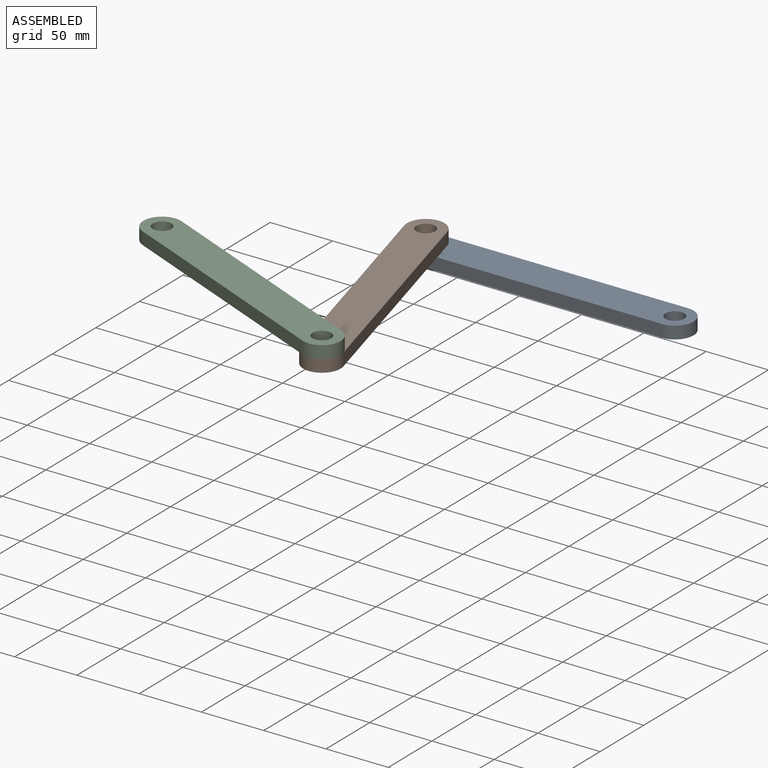
[diagram: assembled view]
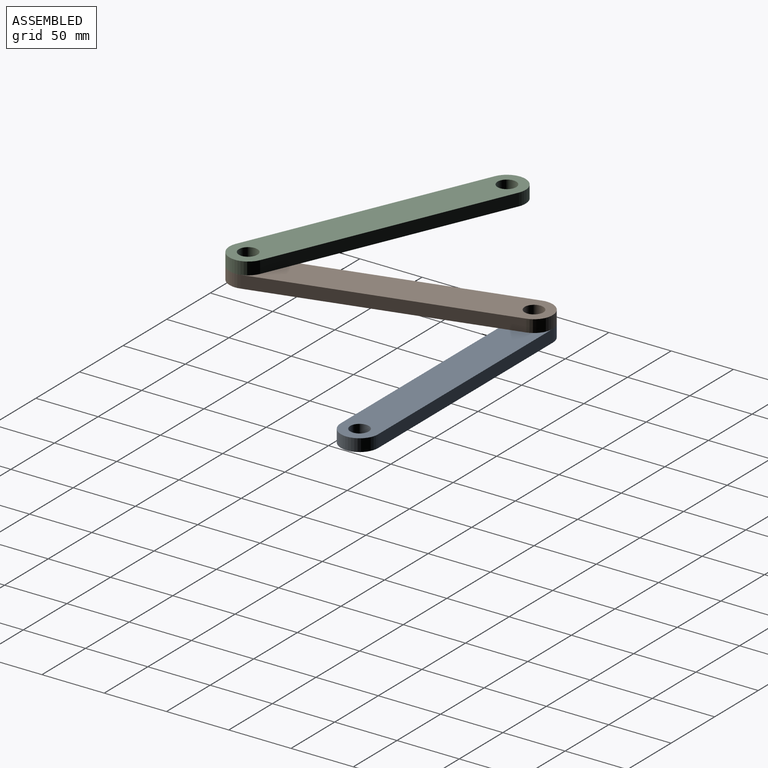
[diagram: assembled view, second angle]
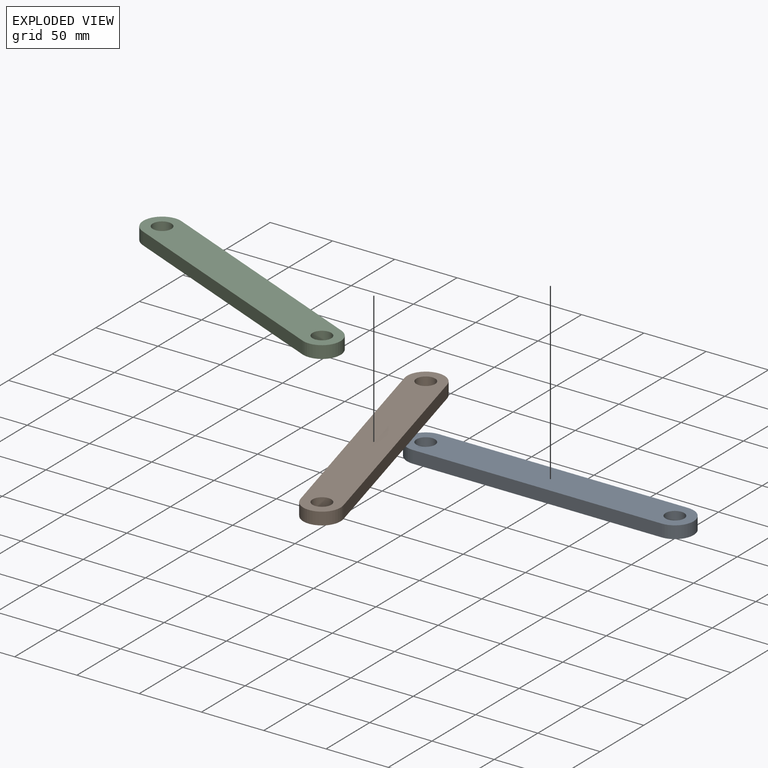
[diagram: exploded view]
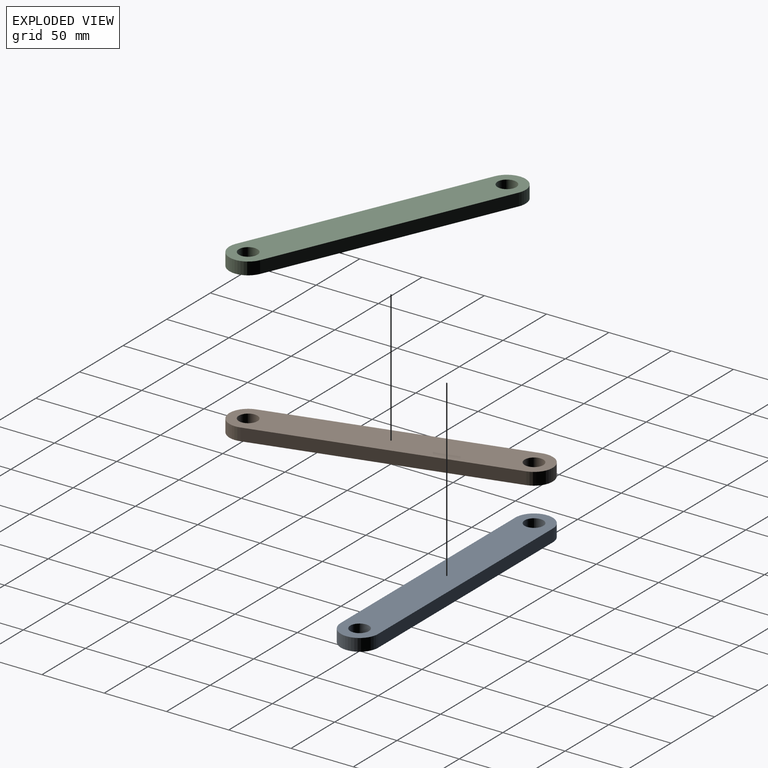
[diagram: exploded view, second angle]
ASSEMBLY  parts=3 mates=2
PART A: 8 faces, bbox 230x30x10 mm
  f0: plane 200x10mm, normal (0,1,0), area 2000mm2, adj f1,f5,f6,f7
  f1: cylinder r=15mm len=30mm, axis (0,0,-1), area 471.2mm2, adj f0,f2,f6,f7
  f2: plane 200x10mm, normal (0,-1,0), area 2000mm2, adj f1,f5,f6,f7
  f3: cylinder r=7.5mm len=15mm, axis (0,0,-1), area 471.2mm2, adj f6,f7
  f4: cylinder r=7.5mm len=15mm, axis (0,0,-1), area 471.2mm2, adj f6,f7
  f5: cylinder r=15mm len=30mm, axis (0,0,-1), area 471.2mm2, adj f0,f2,f6,f7
  f6: plane 230x30mm, normal (0,0,1), area 6353.4mm2, adj f0,f1,f2,f3,f4,f5
  f7: plane 230x30mm, normal (0,0,-1), area 6353.4mm2, adj f0,f1,f2,f3,f4,f5
PART B: same geometry as A
PART C: same geometry as A
PLACE A at identity fixed
PLACE B rot(axis=(0,0,-1),75deg) t=(-74.06,-96.58,10)mm
PLACE C rot(axis=(0,0,-1),23.3deg) t=(-139.97,-153.61,20)mm
MATE revolute B.f3 <-> A.f3  axis (0,0,-1) through (-100,0,10)mm
MATE revolute B.f4 <-> C.f4  axis (0,0,-1) through (-48.12,-193.15,20)mm
